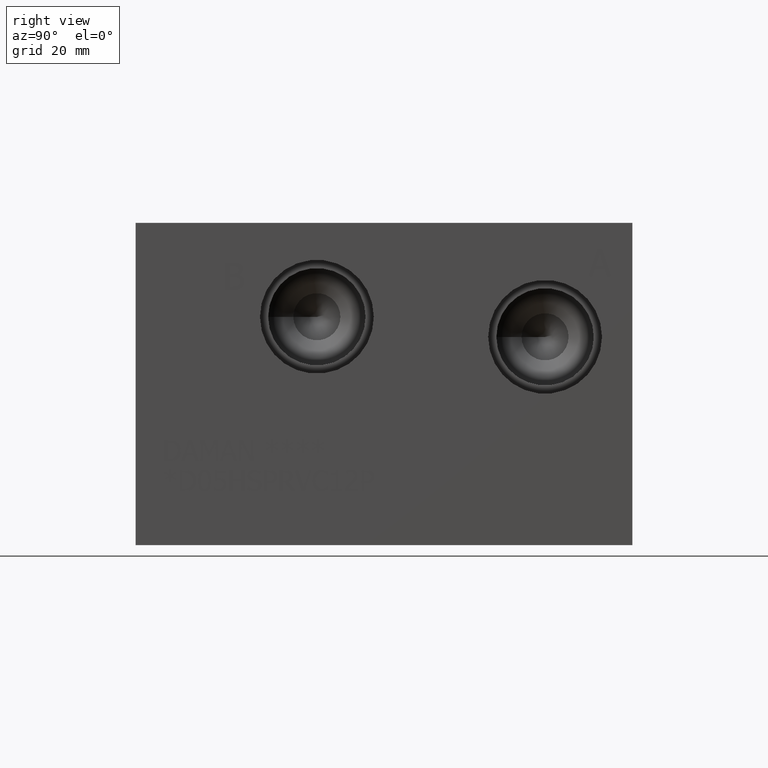
[diagram: clean part render]
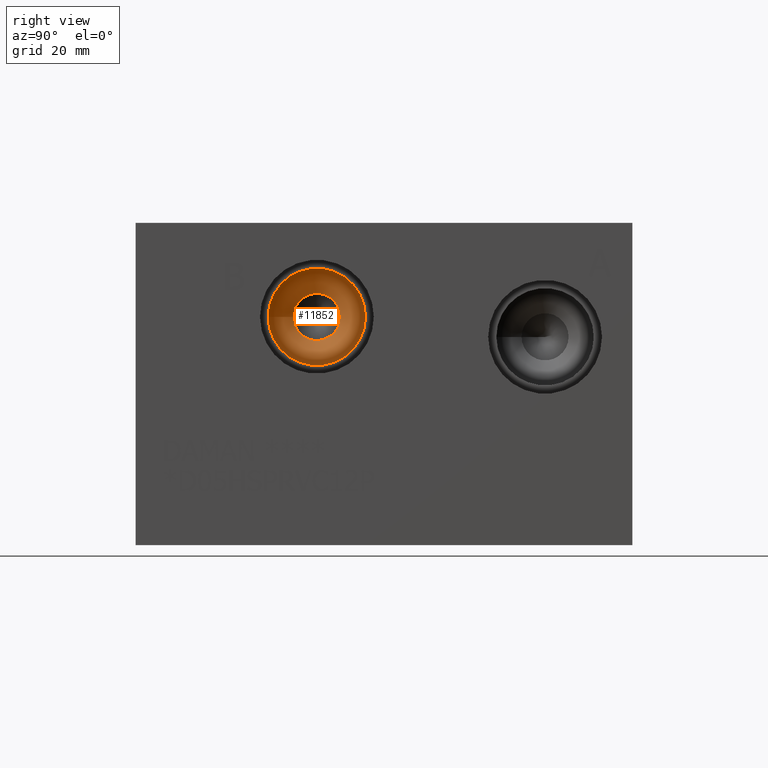
[diagram: same view with one face highlighted and labeled with its STEP entity id]
A machine part, right view. The second image highlights one B-rep face of the part: STEP entity #11852.
In plain terms, the highlighted conical surface has half-angle 60 deg.
Its self-contained STEP definition (entity closure, byte-faithful):
#67=CONICAL_SURFACE('',#12373,5.7531,1.0471975511966);
#130=CIRCLE('',#12368,5.5626);
#133=CIRCLE('',#12374,11.5062);
#134=CIRCLE('',#12375,11.5062);
#1263=FACE_OUTER_BOUND('',#1923,.T.);
#1923=EDGE_LOOP('',(#10252,#10253,#10254,#10255,#10256));
#3157=LINE('',#19774,#4341);
#4341=VECTOR('',#14560,5.7531);
#5647=VERTEX_POINT('',#19759);
#5650=VERTEX_POINT('',#19771);
#5651=VERTEX_POINT('',#19772);
#7232=EDGE_CURVE('',#5647,#5647,#130,.T.);
#7238=EDGE_CURVE('',#5650,#5651,#133,.T.);
#7239=EDGE_CURVE('',#5651,#5647,#3157,.T.);
#7240=EDGE_CURVE('',#5651,#5650,#134,.T.);
#10252=ORIENTED_EDGE('',*,*,#7238,.T.);
#10253=ORIENTED_EDGE('',*,*,#7239,.T.);
#10254=ORIENTED_EDGE('',*,*,#7232,.T.);
#10255=ORIENTED_EDGE('',*,*,#7239,.F.);
#10256=ORIENTED_EDGE('',*,*,#7240,.T.);
#11852=ADVANCED_FACE('',(#1263),#67,.F.);
#12368=AXIS2_PLACEMENT_3D('',#19760,#14543,#14544);
#12373=AXIS2_PLACEMENT_3D('',#19770,#14556,#14557);
#12374=AXIS2_PLACEMENT_3D('',#19773,#14558,#14559);
#12375=AXIS2_PLACEMENT_3D('',#19775,#14561,#14562);
#14543=DIRECTION('center_axis',(-1.,0.,0.));
#14544=DIRECTION('ref_axis',(0.,1.,0.));
#14556=DIRECTION('center_axis',(1.,0.,0.));
#14557=DIRECTION('ref_axis',(0.,1.,0.));
#14558=DIRECTION('center_axis',(1.,0.,0.));
#14559=DIRECTION('ref_axis',(0.,1.,0.));
#14560=DIRECTION('',(-0.5,0.866025403784439,1.06057523872491E-16));
#14561=DIRECTION('center_axis',(1.,0.,0.));
#14562=DIRECTION('ref_axis',(0.,1.,0.));
#19759=CARTESIAN_POINT('',(73.0224609400445,37.2872,53.975));
#19760=CARTESIAN_POINT('Origin',(73.0224609400445,42.8498,53.975));
#19770=CARTESIAN_POINT('Origin',(73.1324461663252,42.8498,53.975));
#19771=CARTESIAN_POINT('',(76.454,54.356,53.975));
#19772=CARTESIAN_POINT('',(76.454,31.3436,53.975));
#19773=CARTESIAN_POINT('Origin',(76.454,42.8498,53.975));
#19774=CARTESIAN_POINT('',(73.1324461663252,37.0967,53.975));
#19775=CARTESIAN_POINT('Origin',(76.454,42.8498,53.975));